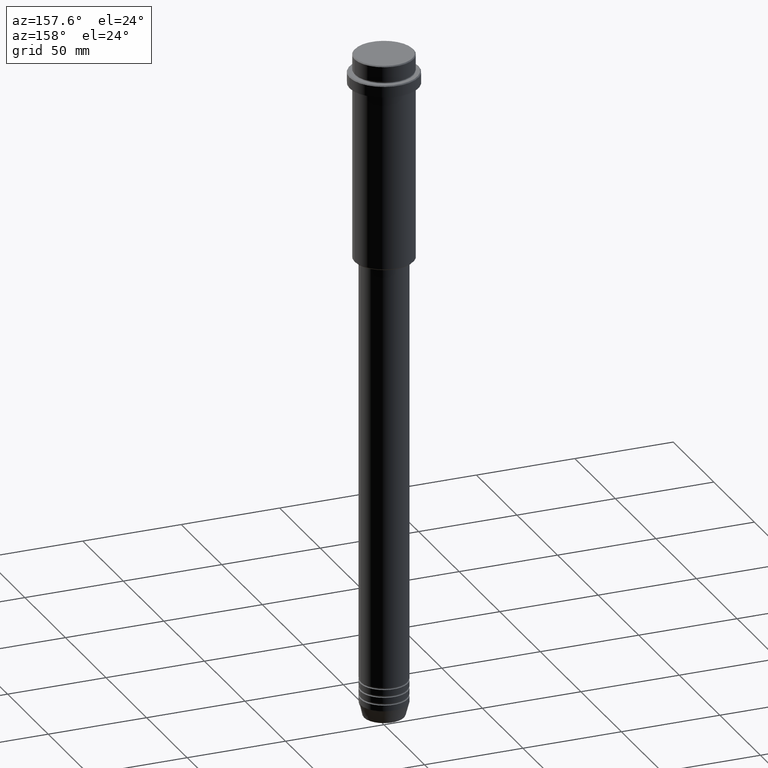
[diagram: clean part render]
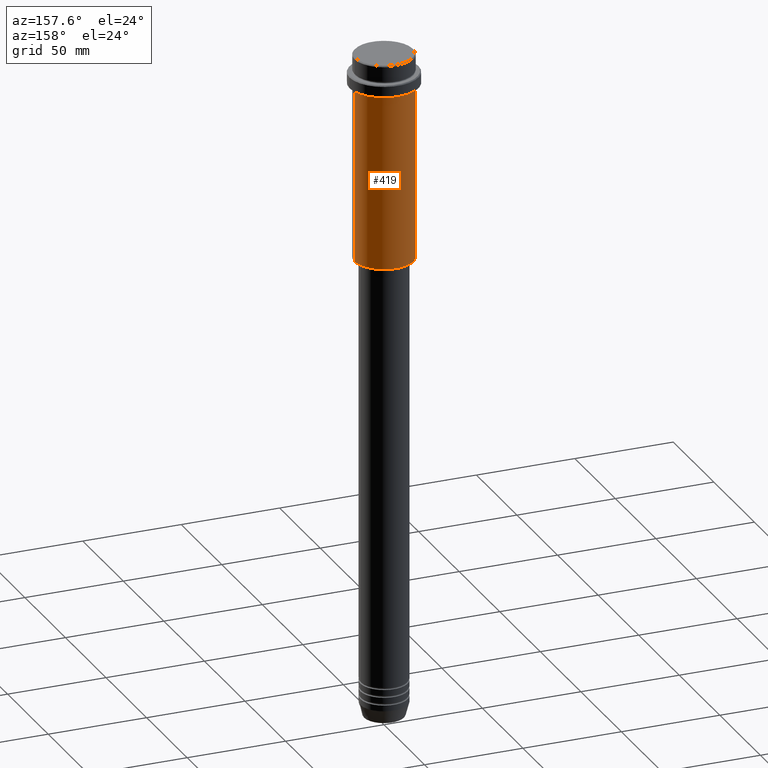
[diagram: same view with one face highlighted and labeled with its STEP entity id]
A machine part, auxiliary view. The second image highlights one B-rep face of the part: STEP entity #419.
In plain terms, the highlighted cylindrical surface (edge-blend (fillet) strip) has radius 15 mm, axis along (-0, -0, 1).
Its self-contained STEP definition (entity closure, byte-faithful):
#2 = DIRECTION ( 'NONE',  ( -1.000000000000000000, 0.000000000000000000, 0.000000000000000000 ) ) ;
#13 = CARTESIAN_POINT ( 'NONE',  ( 15.00000000000000000, 0.000000000000000000, -104.5000000000000426 ) ) ;
#14 = ORIENTED_EDGE ( 'NONE', *, *, #339, .T. ) ;
#209 = FACE_OUTER_BOUND ( 'NONE', #619, .T. ) ;
#220 = AXIS2_PLACEMENT_3D ( 'NONE', #933, #404, #728 ) ;
#227 = LINE ( 'NONE', #662, #1267 ) ;
#247 = ORIENTED_EDGE ( 'NONE', *, *, #1293, .T. ) ;
#273 = CARTESIAN_POINT ( 'NONE',  ( 15.00000000000000178, 0.000000000000000000, -16.00000000000000000 ) ) ;
#336 = CARTESIAN_POINT ( 'NONE',  ( 15.00000000000000000, 0.000000000000000000, 0.000000000000000000 ) ) ;
#339 = EDGE_CURVE ( 'NONE', #1295, #1243, #396, .T. ) ;
#341 = ORIENTED_EDGE ( 'NONE', *, *, #1343, .F. ) ;
#396 = CIRCLE ( 'NONE', #805, 15.00000000000000000 ) ;
#404 = DIRECTION ( 'NONE',  ( -0.000000000000000000, -0.000000000000000000, 1.000000000000000000 ) ) ;
#419 = ADVANCED_FACE ( 'NONE', ( #209 ), #1232, .T. ) ;
#454 = CARTESIAN_POINT ( 'NONE',  ( 0.000000000000000000, 0.000000000000000000, -104.5000000000000426 ) ) ;
#564 = VERTEX_POINT ( 'NONE', #273 ) ;
#568 = ORIENTED_EDGE ( 'NONE', *, *, #757, .F. ) ;
#619 = EDGE_LOOP ( 'NONE', ( #14, #247, #341, #568 ) ) ;
#644 = LINE ( 'NONE', #336, #1012 ) ;
#662 = CARTESIAN_POINT ( 'NONE',  ( -15.00000000000000000, 1.836970198721029589E-15, 0.000000000000000000 ) ) ;
#674 = DIRECTION ( 'NONE',  ( 1.000000000000000000, 0.000000000000000000, 0.000000000000000000 ) ) ;
#728 = DIRECTION ( 'NONE',  ( 1.000000000000000000, 0.000000000000000000, 0.000000000000000000 ) ) ;
#757 = EDGE_CURVE ( 'NONE', #1295, #564, #644, .T. ) ;
#766 = DIRECTION ( 'NONE',  ( -0.000000000000000000, -0.000000000000000000, 1.000000000000000000 ) ) ;
#805 = AXIS2_PLACEMENT_3D ( 'NONE', #454, #1316, #2 ) ;
#859 = CIRCLE ( 'NONE', #220, 15.00000000000000178 ) ;
#887 = DIRECTION ( 'NONE',  ( -0.000000000000000000, -0.000000000000000000, 1.000000000000000000 ) ) ;
#933 = CARTESIAN_POINT ( 'NONE',  ( 0.000000000000000000, 0.000000000000000000, -16.00000000000000000 ) ) ;
#1007 = CARTESIAN_POINT ( 'NONE',  ( 0.000000000000000000, 0.000000000000000000, 0.000000000000000000 ) ) ;
#1012 = VECTOR ( 'NONE', #766, 1000.000000000000000 ) ;
#1027 = DIRECTION ( 'NONE',  ( -0.000000000000000000, -0.000000000000000000, 1.000000000000000000 ) ) ;
#1137 = CARTESIAN_POINT ( 'NONE',  ( -15.00000000000000355, 1.836970198721029983E-15, -16.00000000000000000 ) ) ;
#1232 = CYLINDRICAL_SURFACE ( 'NONE', #1331, 15.00000000000000000 ) ;
#1243 = VERTEX_POINT ( 'NONE', #1416 ) ;
#1267 = VECTOR ( 'NONE', #887, 1000.000000000000000 ) ;
#1293 = EDGE_CURVE ( 'NONE', #1243, #1314, #227, .T. ) ;
#1295 = VERTEX_POINT ( 'NONE', #13 ) ;
#1314 = VERTEX_POINT ( 'NONE', #1137 ) ;
#1316 = DIRECTION ( 'NONE',  ( -0.000000000000000000, -0.000000000000000000, 1.000000000000000000 ) ) ;
#1331 = AXIS2_PLACEMENT_3D ( 'NONE', #1007, #1027, #674 ) ;
#1343 = EDGE_CURVE ( 'NONE', #564, #1314, #859, .T. ) ;
#1416 = CARTESIAN_POINT ( 'NONE',  ( -15.00000000000000000, 1.836970198721029589E-15, -104.5000000000000426 ) ) ;